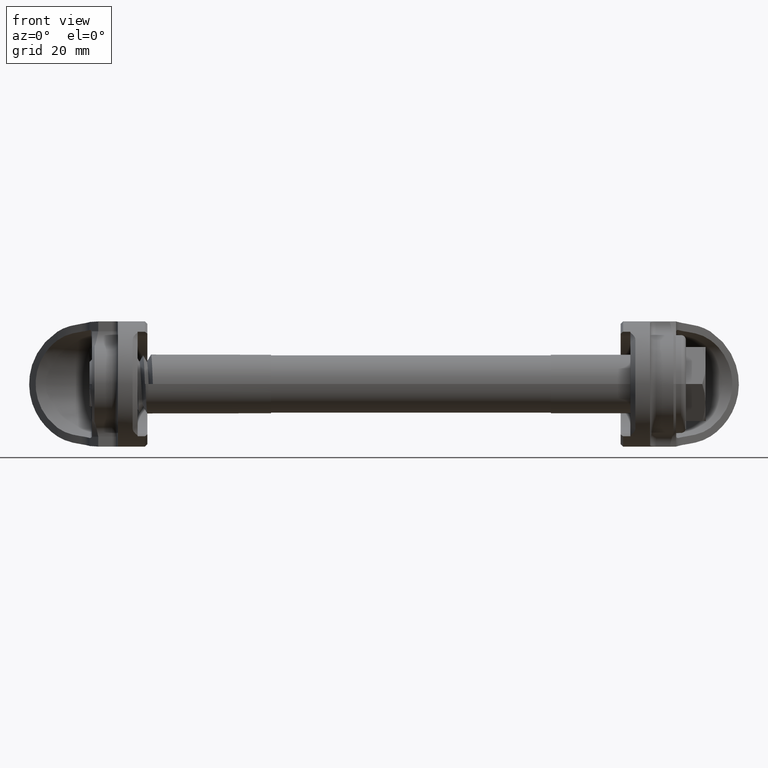
[diagram: clean part render]
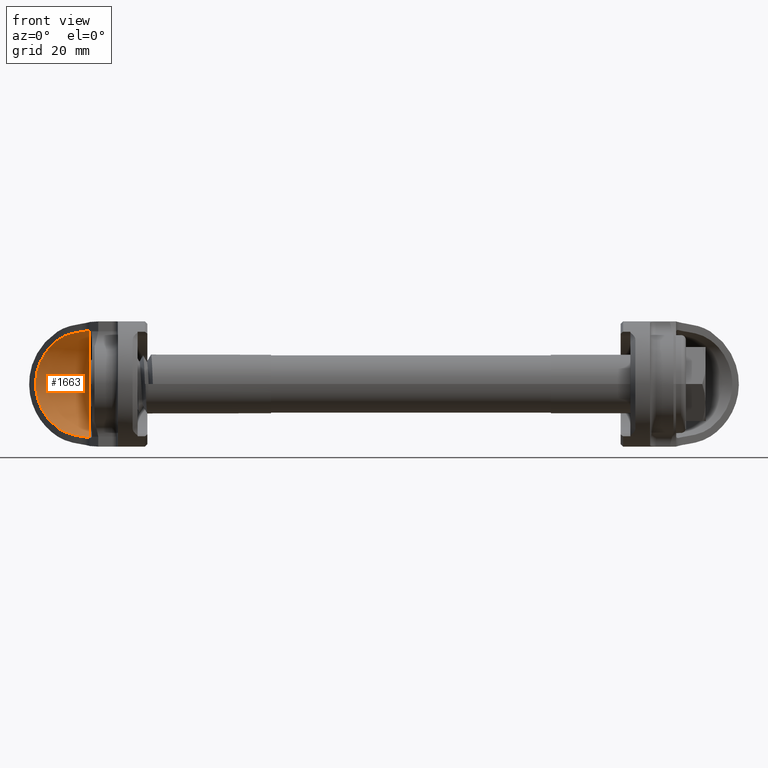
[diagram: same view with one face highlighted and labeled with its STEP entity id]
A machine part, front view. The second image highlights one B-rep face of the part: STEP entity #1663.
In plain terms, the highlighted conical surface has half-angle 1.5 deg.
Its self-contained STEP definition (entity closure, byte-faithful):
#115 = EDGE_CURVE ( 'NONE', #843, #4432, #3698, .T. ) ;
#240 = CARTESIAN_POINT ( 'NONE',  ( -11.94026854845410000, 2.195023200778741100, 10.89632284297876200 ) ) ;
#308 = CARTESIAN_POINT ( 'NONE',  ( -15.17260878310688100, 4.421141161734556800, -10.31025366699307400 ) ) ;
#425 = CARTESIAN_POINT ( 'NONE',  ( -14.28929855260916400, 3.877920986375673600, -10.49283877781514800 ) ) ;
#562 = EDGE_CURVE ( 'NONE', #4432, #1451, #5341, .T. ) ;
#576 = CARTESIAN_POINT ( 'NONE',  ( -13.00716621325154100, 3.231987515245627200, 10.66455241498875500 ) ) ;
#623 = CARTESIAN_POINT ( 'NONE',  ( -13.34579037021300300, 3.402585097414246600, 10.61920110152307100 ) ) ;
#813 = CARTESIAN_POINT ( 'NONE',  ( -13.34579037021300300, 3.402585097414246600, 10.61920110152307100 ) ) ;
#843 = VERTEX_POINT ( 'NONE', #4393 ) ;
#1034 = CARTESIAN_POINT ( 'NONE',  ( -12.70331685199563900, 3.017037648301320800, 10.72090342944270000 ) ) ;
#1443 = CARTESIAN_POINT ( 'NONE',  ( -11.92820277311853700, 2.201502856587278500, -10.89859867522583200 ) ) ;
#1451 = VERTEX_POINT ( 'NONE', #4986 ) ;
#1473 = CARTESIAN_POINT ( 'NONE',  ( -13.81820748943252200, 3.640587072929197800, 10.55593114153991900 ) ) ;
#1595 = CARTESIAN_POINT ( 'NONE',  ( -18.24512640288175500, 6.945126402881753000, -8.887513875572368600 ) ) ;
#1621 = CARTESIAN_POINT ( 'NONE',  ( -11.83686939405784100, 2.040223534834754400, 10.92382665439149700 ) ) ;
#1663 = ADVANCED_FACE ( 'NONE', ( #4649 ), #5303, .F. ) ;
#1723 = CARTESIAN_POINT ( 'NONE',  ( -12.16945435435572500, 2.489095629373963400, 10.83908759150999600 ) ) ;
#1758 = DIRECTION ( 'NONE',  ( 0.0000000000000000000, 0.0000000000000000000, -1.000000000000000000 ) ) ;
#1902 = ORIENTED_EDGE ( 'NONE', *, *, #562, .F. ) ;
#1919 = CARTESIAN_POINT ( 'NONE',  ( -13.34579037021300300, 3.402585097414246600, -10.61920110152306900 ) ) ;
#1934 = CARTESIAN_POINT ( 'NONE',  ( -11.74470211025957400, 0.0000000000000000000, 0.0000000000000000000 ) ) ;
#1942 = CARTESIAN_POINT ( 'NONE',  ( -13.34579037021300300, 3.402585097414246600, -10.61920110152306900 ) ) ;
#2011 = CARTESIAN_POINT ( 'NONE',  ( -24.00000000000000000, 0.0000000000000000000, 0.0000000000000000000 ) ) ;
#2044 = CARTESIAN_POINT ( 'NONE',  ( -17.57708747033124700, 6.277087470331244900, 9.387350344075185800 ) ) ;
#2068 = CARTESIAN_POINT ( 'NONE',  ( -11.74470211025959900, 1.877471678157313800, 10.94928497356605300 ) ) ;
#2085 = CARTESIAN_POINT ( 'NONE',  ( -16.40470584539706400, 5.318998018037399700, -9.897197100659827400 ) ) ;
#2155 = CARTESIAN_POINT ( 'NONE',  ( -16.80096726414094400, 5.633087680890811000, -9.735529763222988500 ) ) ;
#2190 = CARTESIAN_POINT ( 'NONE',  ( -24.72034778642774100, 13.42034778642774600, 4.042658835808913900 ) ) ;
#2202 = AXIS2_PLACEMENT_3D ( 'NONE', #1934, #4925, #2367 ) ;
#2260 = ORIENTED_EDGE ( 'NONE', *, *, #4570, .F. ) ;
#2328 = DIRECTION ( 'NONE',  ( -1.000000000000000000, 0.0000000000000000000, 0.0000000000000000000 ) ) ;
#2367 = DIRECTION ( 'NONE',  ( 0.0000000000000000000, 0.0000000000000000000, 1.000000000000000000 ) ) ;
#2521 = CARTESIAN_POINT ( 'NONE',  ( -11.74470211025959900, 1.877471678157314000, -10.94928497356605100 ) ) ;
#2722 = ORIENTED_EDGE ( 'NONE', *, *, #2782, .F. ) ;
#2775 =( BOUNDED_CURVE ( )  B_SPLINE_CURVE ( 3, ( #4300, #4741, #2190, #5162 ),
 .UNSPECIFIED., .F., .F. ) 
 B_SPLINE_CURVE_WITH_KNOTS ( ( 4, 4 ),
 ( 5.354910962709800200, 7.211459651649372300 ),
 .UNSPECIFIED. ) 
 CURVE ( )  GEOMETRIC_REPRESENTATION_ITEM ( )  RATIONAL_B_SPLINE_CURVE ( ( 1.000000000000000000, 0.7328109408960324900, 0.7328109408960324900, 1.000000000000000000 ) ) 
 REPRESENTATION_ITEM ( '' )  );
#2782 = EDGE_CURVE ( 'NONE', #2789, #2934, #3112, .T. ) ;
#2789 = VERTEX_POINT ( 'NONE', #1942 ) ;
#2872 = EDGE_LOOP ( 'NONE', ( #1902, #5245, #2260, #2722, #4111, #3255 ) ) ;
#2934 = VERTEX_POINT ( 'NONE', #1595 ) ;
#3112 = B_SPLINE_CURVE_WITH_KNOTS ( 'NONE', 3,
 ( #1919, #425, #308, #2085, #2155, #4875, #4769, #4750 ),
 .UNSPECIFIED., .F., .F.,
 ( 4, 2, 2, 4 ),
 ( 2.228039129743319800E-007, 0.003153496828879912600, 0.004730133841363380100, 0.006306770853846846300 ),
 .UNSPECIFIED. ) ;
#3199 = VERTEX_POINT ( 'NONE', #5244 ) ;
#3236 = CARTESIAN_POINT ( 'NONE',  ( -16.83188750099676400, 5.631721592896237600, 9.752350290256211800 ) ) ;
#3255 = ORIENTED_EDGE ( 'NONE', *, *, #5155, .F. ) ;
#3545 = CIRCLE ( 'NONE', #2202, 11.10908373065223400 ) ;
#3575 = CARTESIAN_POINT ( 'NONE',  ( -14.27771210132515700, 3.896734962581282200, 10.47804033509704000 ) ) ;
#3680 = CARTESIAN_POINT ( 'NONE',  ( -12.16222922935506300, 2.501337160453317200, -10.83821906507353600 ) ) ;
#3698 = B_SPLINE_CURVE_WITH_KNOTS ( 'NONE', 3,
 ( #4552, #2044, #3236, #4587, #4610, #3575, #1473, #5344 ),
 .UNSPECIFIED., .F., .F.,
 ( 4, 2, 2, 4 ),
 ( 3.144050200324475100E-007, 0.003150799832175970200, 0.004726042545753938300, 0.006301285259331905100 ),
 .UNSPECIFIED. ) ;
#3847 = CARTESIAN_POINT ( 'NONE',  ( -12.69927407106227700, 3.013425976842632800, -10.72174909503269200 ) ) ;
#3879 = CARTESIAN_POINT ( 'NONE',  ( -13.00815228027566500, 3.232484292119673300, -10.66442035283728500 ) ) ;
#4111 = ORIENTED_EDGE ( 'NONE', *, *, #4169, .F. ) ;
#4169 = EDGE_CURVE ( 'NONE', #3199, #2789, #5371, .T. ) ;
#4300 = CARTESIAN_POINT ( 'NONE',  ( -18.24512640288175500, 6.945126402881753000, -8.887513875572368600 ) ) ;
#4386 = CARTESIAN_POINT ( 'NONE',  ( -13.34579037021300300, 3.402585097414246600, -10.61920110152306900 ) ) ;
#4393 = CARTESIAN_POINT ( 'NONE',  ( -18.24512640288175200, 6.945126402881754800, 8.887513875572366800 ) ) ;
#4432 = VERTEX_POINT ( 'NONE', #813 ) ;
#4552 = CARTESIAN_POINT ( 'NONE',  ( -18.24512640288175200, 6.945126402881754800, 8.887513875572366800 ) ) ;
#4570 = EDGE_CURVE ( 'NONE', #2934, #843, #2775, .T. ) ;
#4587 = CARTESIAN_POINT ( 'NONE',  ( -15.60098588748685500, 4.732618141096955900, 10.16743385831487200 ) ) ;
#4610 = CARTESIAN_POINT ( 'NONE',  ( -15.17029912469529100, 4.443385451751481700, 10.28363531529786300 ) ) ;
#4649 = FACE_OUTER_BOUND ( 'NONE', #2872, .T. ) ;
#4741 = CARTESIAN_POINT ( 'NONE',  ( -24.72034778642774100, 13.42034778642774200, -4.042658835808917500 ) ) ;
#4750 = CARTESIAN_POINT ( 'NONE',  ( -18.24512640288175500, 6.945126402881753000, -8.887513875572368600 ) ) ;
#4769 = CARTESIAN_POINT ( 'NONE',  ( -17.91169746014507400, 6.611697460145080600, -9.136990271503117700 ) ) ;
#4875 = CARTESIAN_POINT ( 'NONE',  ( -17.55631137975336400, 6.281098480354097900, -9.354416550975532400 ) ) ;
#4908 = CARTESIAN_POINT ( 'NONE',  ( -12.29640826952516800, 2.629401767530011600, 10.80910395375716200 ) ) ;
#4925 = DIRECTION ( 'NONE',  ( -1.000000000000000000, 0.0000000000000000000, 0.0000000000000000000 ) ) ;
#4986 = CARTESIAN_POINT ( 'NONE',  ( -11.74470211025959900, 1.877471678157313800, 10.94928497356605300 ) ) ;
#5012 = AXIS2_PLACEMENT_3D ( 'NONE', #2011, #2328, #1758 ) ;
#5155 = EDGE_CURVE ( 'NONE', #1451, #3199, #3545, .T. ) ;
#5162 = CARTESIAN_POINT ( 'NONE',  ( -18.24512640288175200, 6.945126402881754800, 8.887513875572366800 ) ) ;
#5244 = CARTESIAN_POINT ( 'NONE',  ( -11.74470211025959900, 1.877471678157314000, -10.94928497356605100 ) ) ;
#5245 = ORIENTED_EDGE ( 'NONE', *, *, #115, .F. ) ;
#5303 = CONICAL_SURFACE ( 'NONE', #5012, 11.43000000000000000, 0.02617993877991500000 ) ;
#5341 = B_SPLINE_CURVE_WITH_KNOTS ( 'NONE', 3,
 ( #623, #576, #1034, #4908, #1723, #240, #1621, #2068 ),
 .UNSPECIFIED., .F., .F.,
 ( 4, 2, 2, 4 ),
 ( 2.222767719810860400E-007, 0.001129269917079129700, 0.001693793737232704000, 0.002258317557386278300 ),
 .UNSPECIFIED. ) ;
#5344 = CARTESIAN_POINT ( 'NONE',  ( -13.34579037021300300, 3.402585097414246600, 10.61920110152307100 ) ) ;
#5371 = B_SPLINE_CURVE_WITH_KNOTS ( 'NONE', 3,
 ( #2521, #1443, #3680, #3847, #3879, #4386 ),
 .UNSPECIFIED., .F., .F.,
 ( 4, 2, 4 ),
 ( 0.001960955660603653300, 0.003087090704447579100, 0.004213225748291504400 ),
 .UNSPECIFIED. ) ;